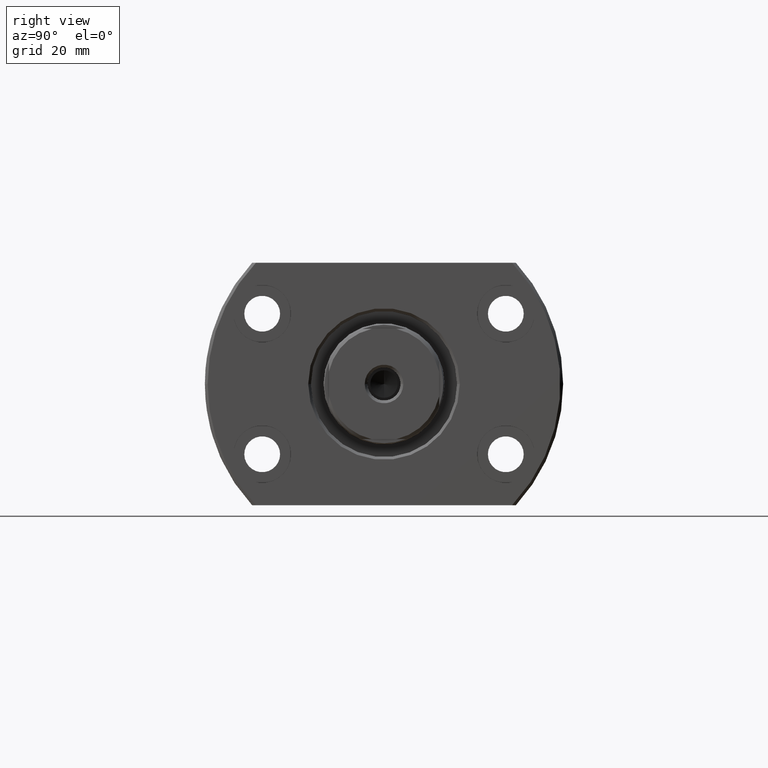
[diagram: clean part render]
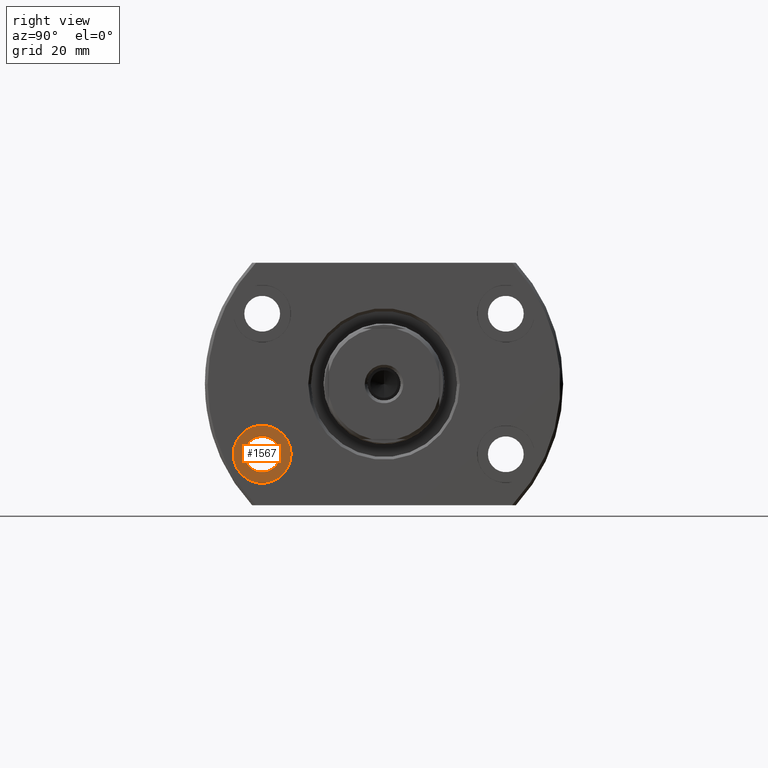
[diagram: same view with one face highlighted and labeled with its STEP entity id]
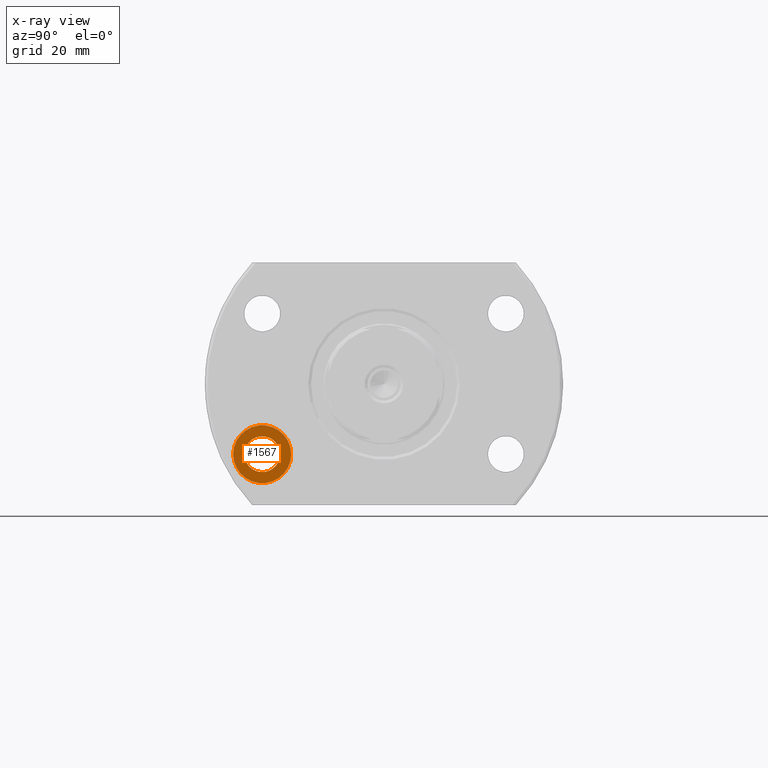
[diagram: x-ray of the same camera — body ghosted, the highlighted face saturated]
A machine part, right view. The second image highlights one B-rep face of the part: STEP entity #1567.
The next image is the same camera in x-ray: the body ghosted, the highlighted face saturated — about 0% of this face is hidden behind the body in this view.
In plain terms, the highlighted planar face has unit normal (1, -0, -0).
Its self-contained STEP definition (entity closure, byte-faithful):
#36 = EDGE_LOOP ( 'NONE', ( #2959, #1517 ) ) ;
#73 = DIRECTION ( 'NONE',  ( 2.882309775469156694E-14, 1.000000000000000000, 0.000000000000000000 ) ) ;
#219 = DIRECTION ( 'NONE',  ( 2.882309775469156694E-14, 1.000000000000000000, 0.000000000000000000 ) ) ;
#294 = AXIS2_PLACEMENT_3D ( 'NONE', #1535, #1057, #73 ) ;
#316 = CARTESIAN_POINT ( 'NONE',  ( 20.99999999999927169, -25.35000000000060538, -12.75000000000000178 ) ) ;
#318 = CARTESIAN_POINT ( 'NONE',  ( 20.99999999999936762, -22.10000000000060538, -12.75000000000000178 ) ) ;
#333 = DIRECTION ( 'NONE',  ( 1.000000000000000000, -2.887798767815668620E-14, -6.310887241768094443E-30 ) ) ;
#615 = AXIS2_PLACEMENT_3D ( 'NONE', #1250, #2489, #219 ) ;
#897 = DIRECTION ( 'NONE',  ( 2.907726969256361977E-14, 1.000000000000000000, 0.000000000000000000 ) ) ;
#979 = VERTEX_POINT ( 'NONE', #3149 ) ;
#1057 = DIRECTION ( 'NONE',  ( 1.000000000000000000, -2.887798767815668620E-14, -6.310887241768094443E-30 ) ) ;
#1077 = CIRCLE ( 'NONE', #615, 3.249999999999999556 ) ;
#1196 = EDGE_CURVE ( 'NONE', #3012, #2284, #2709, .T. ) ;
#1250 = CARTESIAN_POINT ( 'NONE',  ( 20.99999999999936762, -22.10000000000060538, -12.75000000000000178 ) ) ;
#1302 = DIRECTION ( 'NONE',  ( 2.887798767815668620E-14, 1.000000000000000000, 0.000000000000000000 ) ) ;
#1316 = DIRECTION ( 'NONE',  ( 2.907726969256361977E-14, 1.000000000000000000, 0.000000000000000000 ) ) ;
#1356 = ORIENTED_EDGE ( 'NONE', *, *, #1800, .T. ) ;
#1390 = AXIS2_PLACEMENT_3D ( 'NONE', #2875, #1654, #897 ) ;
#1450 = EDGE_LOOP ( 'NONE', ( #3160, #1356 ) ) ;
#1517 = ORIENTED_EDGE ( 'NONE', *, *, #2049, .F. ) ;
#1535 = CARTESIAN_POINT ( 'NONE',  ( 20.99999999999936762, -22.10000000000060538, -12.75000000000000178 ) ) ;
#1548 = AXIS2_PLACEMENT_3D ( 'NONE', #1603, #2115, #1302 ) ;
#1567 = ADVANCED_FACE ( 'NONE', ( #2357, #1835 ), #2824, .T. ) ;
#1603 = CARTESIAN_POINT ( 'NONE',  ( 21.00000000000000355, -6.065243638909961053E-13, -1.735493991486226196E-28 ) ) ;
#1654 = DIRECTION ( 'NONE',  ( 1.000000000000000000, -2.887798767815668620E-14, -6.310887241768094443E-30 ) ) ;
#1695 = CIRCLE ( 'NONE', #294, 3.249999999999999556 ) ;
#1800 = EDGE_CURVE ( 'NONE', #2284, #3012, #2839, .T. ) ;
#1835 = FACE_OUTER_BOUND ( 'NONE', #1450, .T. ) ;
#1919 = CARTESIAN_POINT ( 'NONE',  ( 20.99999999999952038, -16.85000000000060538, -12.75000000000000178 ) ) ;
#2039 = VERTEX_POINT ( 'NONE', #316 ) ;
#2049 = EDGE_CURVE ( 'NONE', #2039, #979, #1695, .T. ) ;
#2115 = DIRECTION ( 'NONE',  ( 1.000000000000000000, -2.887798767815668620E-14, -6.310887241768094443E-30 ) ) ;
#2196 = AXIS2_PLACEMENT_3D ( 'NONE', #318, #333, #1316 ) ;
#2284 = VERTEX_POINT ( 'NONE', #2703 ) ;
#2357 = FACE_BOUND ( 'NONE', #36, .T. ) ;
#2382 = EDGE_CURVE ( 'NONE', #979, #2039, #1077, .T. ) ;
#2489 = DIRECTION ( 'NONE',  ( 1.000000000000000000, -2.887798767815668620E-14, -6.310887241768094443E-30 ) ) ;
#2703 = CARTESIAN_POINT ( 'NONE',  ( 20.99999999999921485, -27.35000000000060538, -12.75000000000000178 ) ) ;
#2709 = CIRCLE ( 'NONE', #2196, 5.250000000000000888 ) ;
#2824 = PLANE ( 'NONE',  #1548 ) ;
#2839 = CIRCLE ( 'NONE', #1390, 5.250000000000000888 ) ;
#2875 = CARTESIAN_POINT ( 'NONE',  ( 20.99999999999936762, -22.10000000000060538, -12.75000000000000178 ) ) ;
#2959 = ORIENTED_EDGE ( 'NONE', *, *, #2382, .F. ) ;
#3012 = VERTEX_POINT ( 'NONE', #1919 ) ;
#3149 = CARTESIAN_POINT ( 'NONE',  ( 20.99999999999945999, -18.85000000000060538, -12.75000000000000178 ) ) ;
#3160 = ORIENTED_EDGE ( 'NONE', *, *, #1196, .T. ) ;